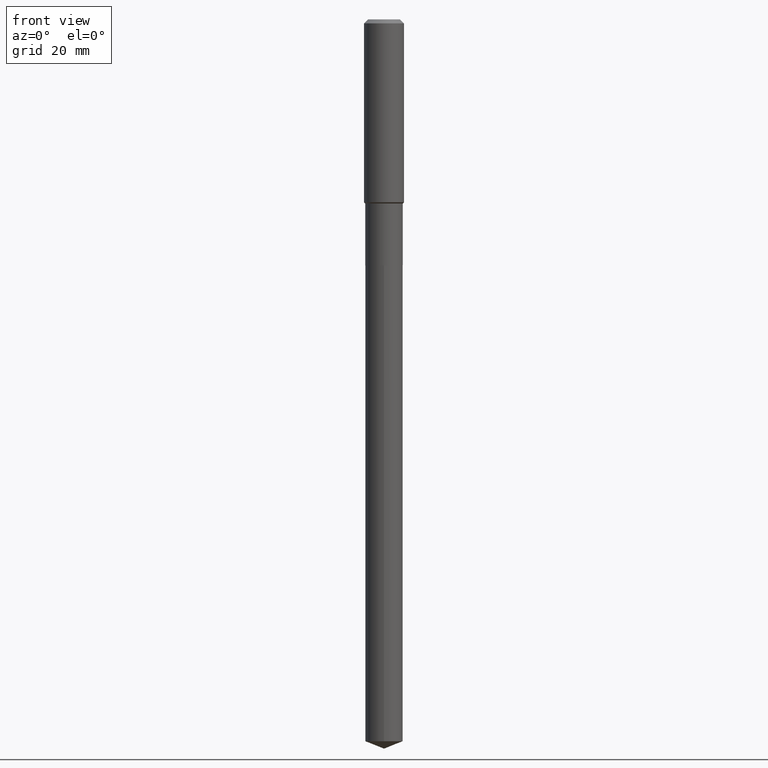
[diagram: clean part render]
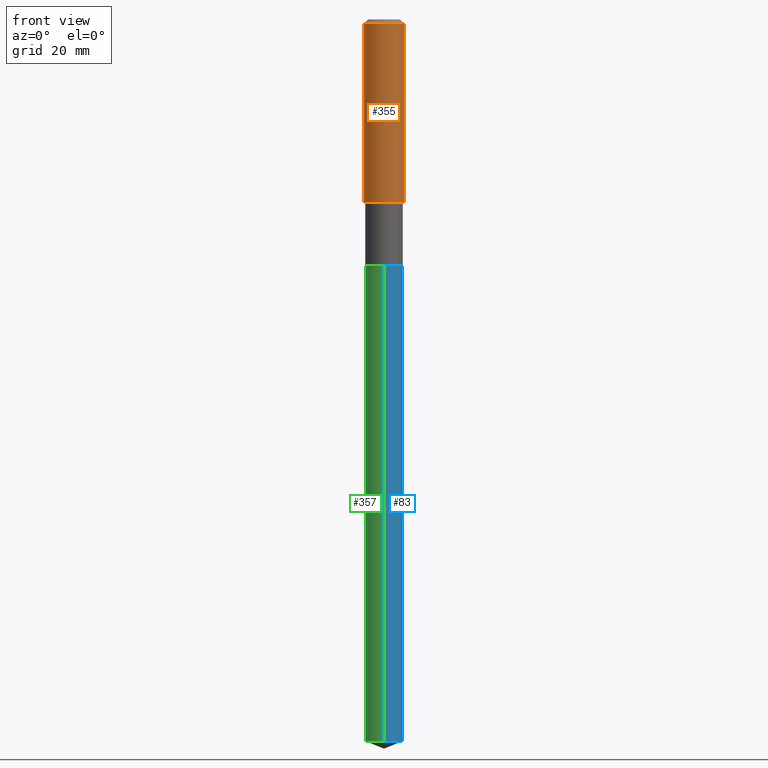
[diagram: same view with three faces highlighted in distinct colors, each labeled with its STEP entity id]
A machine part, front view with three faces highlighted in distinct colors.
Their STEP definitions:

[orange] entity #355 — the highlighted cylindrical surface (edge-blend (fillet) strip) has radius 4.0005 mm, axis along (-0, 0, 1).
#10 = DIRECTION ( 'NONE',  ( 1.000000000000000000, -6.982962677686267499E-15, 4.876176775795936353E-29 ) ) ;
#14 = ORIENTED_EDGE ( 'NONE', *, *, #477, .F. ) ;
#34 = CARTESIAN_POINT ( 'NONE',  ( 0.1575000000000000011, -1.209798283909146741E-15, -0.03150000000000019451 ) ) ;
#46 = CARTESIAN_POINT ( 'NONE',  ( -0.1575000000000001676, -3.915087559588830636E-15, -1.441850000000000076 ) ) ;
#50 = CARTESIAN_POINT ( 'NONE',  ( -0.1575000000000000011, -1.452982206470116048E-15, -0.03150000000000019451 ) ) ;
#51 = CARTESIAN_POINT ( 'NONE',  ( 7.703226739483228723E-31, -1.099816621735597661E-16, -0.03150000000000019451 ) ) ;
#61 = EDGE_CURVE ( 'NONE', #467, #257, #170, .T. ) ;
#97 = LINE ( 'NONE', #356, #432 ) ;
#108 = CARTESIAN_POINT ( 'NONE',  ( 0.1575000000000001676, -6.134008990146578875E-15, -1.441850000000000076 ) ) ;
#118 = AXIS2_PLACEMENT_3D ( 'NONE', #129, #149, #420 ) ;
#129 = CARTESIAN_POINT ( 'NONE',  ( 3.525999198198039773E-29, -5.034192368410989029E-15, -1.441850000000000076 ) ) ;
#144 = CIRCLE ( 'NONE', #118, 0.1575000000000001676 ) ;
#148 = EDGE_CURVE ( 'NONE', #153, #440, #144, .T. ) ;
#149 = DIRECTION ( 'NONE',  ( -2.445468806185136597E-29, 3.491481338843145583E-15, 1.000000000000000000 ) ) ;
#153 = VERTEX_POINT ( 'NONE', #46 ) ;
#170 = CIRCLE ( 'NONE', #209, 0.1575000000000000011 ) ;
#206 = ORIENTED_EDGE ( 'NONE', *, *, #148, .T. ) ;
#209 = AXIS2_PLACEMENT_3D ( 'NONE', #51, #309, #394 ) ;
#227 = CARTESIAN_POINT ( 'NONE',  ( 0.000000000000000000, 0.000000000000000000, 0.000000000000000000 ) ) ;
#257 = VERTEX_POINT ( 'NONE', #34 ) ;
#290 = FACE_OUTER_BOUND ( 'NONE', #430, .T. ) ;
#294 = LINE ( 'NONE', #326, #422 ) ;
#296 = ORIENTED_EDGE ( 'NONE', *, *, #413, .T. ) ;
#300 = CYLINDRICAL_SURFACE ( 'NONE', #414, 0.1575000000000000844 ) ;
#309 = DIRECTION ( 'NONE',  ( -2.445468806185136597E-29, 3.491481338843145583E-15, 1.000000000000000000 ) ) ;
#326 = CARTESIAN_POINT ( 'NONE',  ( 0.1575000000000000844, -1.099816621735587677E-15, 7.679978421878603638E-30 ) ) ;
#355 = ADVANCED_FACE ( 'NONE', ( #290 ), #300, .T. ) ;
#356 = CARTESIAN_POINT ( 'NONE',  ( -0.1575000000000000844, 1.119104808822158392E-15, -7.747322767151481189E-30 ) ) ;
#378 = DIRECTION ( 'NONE',  ( -2.445468806185136597E-29, 3.491481338843145583E-15, 1.000000000000000000 ) ) ;
#394 = DIRECTION ( 'NONE',  ( 1.000000000000000000, -6.982962677686265922E-15, 0.000000000000000000 ) ) ;
#404 = DIRECTION ( 'NONE',  ( -2.445468806185136877E-29, 3.491481338843145188E-15, 1.000000000000000000 ) ) ;
#413 = EDGE_CURVE ( 'NONE', #440, #257, #294, .T. ) ;
#414 = AXIS2_PLACEMENT_3D ( 'NONE', #227, #378, #10 ) ;
#420 = DIRECTION ( 'NONE',  ( 1.000000000000000000, -6.982962677686267499E-15, 0.000000000000000000 ) ) ;
#422 = VECTOR ( 'NONE', #404, 39.37007874015748143 ) ;
#430 = EDGE_LOOP ( 'NONE', ( #14, #206, #296, #471 ) ) ;
#432 = VECTOR ( 'NONE', #435, 39.37007874015748143 ) ;
#435 = DIRECTION ( 'NONE',  ( -2.445468806185136877E-29, 3.491481338843145188E-15, 1.000000000000000000 ) ) ;
#440 = VERTEX_POINT ( 'NONE', #108 ) ;
#467 = VERTEX_POINT ( 'NONE', #50 ) ;
#471 = ORIENTED_EDGE ( 'NONE', *, *, #61, .F. ) ;
#477 = EDGE_CURVE ( 'NONE', #153, #467, #97, .T. ) ;

[blue] entity #83 — the highlighted cylindrical surface (edge-blend (fillet) strip) has radius 3.7503 mm, axis along (-0, 0, 1).
#2 = ORIENTED_EDGE ( 'NONE', *, *, #288, .F. ) ;
#42 = CARTESIAN_POINT ( 'NONE',  ( 1.049116349349926986E-15, 0.1476499999999801305, -5.689839118275454410 ) ) ;
#62 = DIRECTION ( 'NONE',  ( -2.445505750624633031E-29, 3.491428432303039480E-15, 1.000000000000000000 ) ) ;
#83 = ADVANCED_FACE ( 'NONE', ( #484 ), #145, .T. ) ;
#84 = CARTESIAN_POINT ( 'NONE',  ( -1.031034439360329753E-15, -0.1476500000000068036, -1.938999999999999169 ) ) ;
#87 = CIRCLE ( 'NONE', #359, 0.1476500000000000035 ) ;
#89 = LINE ( 'NONE', #84, #232 ) ;
#98 = EDGE_CURVE ( 'NONE', #116, #292, #87, .T. ) ;
#109 = DIRECTION ( 'NONE',  ( -6.982962677686266711E-15, -1.000000000000000000, 3.700437512582815297E-15 ) ) ;
#114 = ORIENTED_EDGE ( 'NONE', *, *, #253, .T. ) ;
#116 = VERTEX_POINT ( 'NONE', #212 ) ;
#123 = CARTESIAN_POINT ( 'NONE',  ( 1.049116349349835281E-15, 0.1476499999999932311, -1.939000000000000279 ) ) ;
#145 = CYLINDRICAL_SURFACE ( 'NONE', #365, 0.1476500000000000035 ) ;
#161 = CARTESIAN_POINT ( 'NONE',  ( 1.391446264860343050E-28, -1.986576865855824587E-14, -5.689839118275454410 ) ) ;
#188 = ORIENTED_EDGE ( 'NONE', *, *, #98, .F. ) ;
#197 = DIRECTION ( 'NONE',  ( -2.445505750624633031E-29, 3.491428432303039480E-15, 1.000000000000000000 ) ) ;
#203 = VERTEX_POINT ( 'NONE', #263 ) ;
#212 = CARTESIAN_POINT ( 'NONE',  ( -1.031034439360329753E-15, -0.1476500000000068036, -1.938999999999999169 ) ) ;
#214 = CARTESIAN_POINT ( 'NONE',  ( 4.741764015192979440E-29, -6.769982316016858264E-15, -1.938999999999999835 ) ) ;
#232 = VECTOR ( 'NONE', #458, 39.37007874015748143 ) ;
#246 = CARTESIAN_POINT ( 'NONE',  ( 4.741764015192979440E-29, -6.769982316016858264E-15, -1.938999999999999835 ) ) ;
#253 = EDGE_CURVE ( 'NONE', #260, #292, #383, .T. ) ;
#260 = VERTEX_POINT ( 'NONE', #42 ) ;
#263 = CARTESIAN_POINT ( 'NONE',  ( -1.031034439360237850E-15, -0.1476500000000198487, -5.689839118275454410 ) ) ;
#273 = EDGE_LOOP ( 'NONE', ( #457, #114, #188, #2 ) ) ;
#288 = EDGE_CURVE ( 'NONE', #203, #116, #89, .T. ) ;
#292 = VERTEX_POINT ( 'NONE', #367 ) ;
#298 = CIRCLE ( 'NONE', #361, 0.1476500000000000035 ) ;
#304 = DIRECTION ( 'NONE',  ( -6.982962677686266711E-15, -1.000000000000000000, 0.000000000000000000 ) ) ;
#319 = EDGE_CURVE ( 'NONE', #203, #260, #298, .T. ) ;
#359 = AXIS2_PLACEMENT_3D ( 'NONE', #246, #62, #109 ) ;
#361 = AXIS2_PLACEMENT_3D ( 'NONE', #161, #423, #304 ) ;
#365 = AXIS2_PLACEMENT_3D ( 'NONE', #214, #442, #476 ) ;
#367 = CARTESIAN_POINT ( 'NONE',  ( 1.049116349349927775E-15, 0.1476499999999932311, -1.939000000000000279 ) ) ;
#383 = LINE ( 'NONE', #123, #451 ) ;
#423 = DIRECTION ( 'NONE',  ( -2.445505750624633031E-29, 3.491428432303039480E-15, 1.000000000000000000 ) ) ;
#442 = DIRECTION ( 'NONE',  ( -2.445505750624633031E-29, 3.491428432303039480E-15, 1.000000000000000000 ) ) ;
#451 = VECTOR ( 'NONE', #197, 39.37007874015748143 ) ;
#457 = ORIENTED_EDGE ( 'NONE', *, *, #319, .T. ) ;
#458 = DIRECTION ( 'NONE',  ( -2.445505750624633031E-29, 3.491428432303039480E-15, 1.000000000000000000 ) ) ;
#476 = DIRECTION ( 'NONE',  ( -6.982962677686266711E-15, -1.000000000000000000, 3.700437512582815297E-15 ) ) ;
#484 = FACE_OUTER_BOUND ( 'NONE', #273, .T. ) ;

[green] entity #357 — the highlighted cylindrical surface (edge-blend (fillet) strip) has radius 3.7503 mm, axis along (-0, 0, 1).
#3 = CARTESIAN_POINT ( 'NONE',  ( 1.391446264860343050E-28, -1.986576865855824587E-14, -5.689839118275454410 ) ) ;
#12 = ORIENTED_EDGE ( 'NONE', *, *, #407, .T. ) ;
#42 = CARTESIAN_POINT ( 'NONE',  ( 1.049116349349926986E-15, 0.1476499999999801305, -5.689839118275454410 ) ) ;
#58 = FACE_OUTER_BOUND ( 'NONE', #192, .T. ) ;
#73 = DIRECTION ( 'NONE',  ( -2.445505750624633031E-29, 3.491428432303039480E-15, 1.000000000000000000 ) ) ;
#80 = CIRCLE ( 'NONE', #156, 0.1476500000000000035 ) ;
#84 = CARTESIAN_POINT ( 'NONE',  ( -1.031034439360329753E-15, -0.1476500000000068036, -1.938999999999999169 ) ) ;
#89 = LINE ( 'NONE', #84, #232 ) ;
#116 = VERTEX_POINT ( 'NONE', #212 ) ;
#123 = CARTESIAN_POINT ( 'NONE',  ( 1.049116349349835281E-15, 0.1476499999999932311, -1.939000000000000279 ) ) ;
#156 = AXIS2_PLACEMENT_3D ( 'NONE', #3, #73, #369 ) ;
#191 = ORIENTED_EDGE ( 'NONE', *, *, #288, .T. ) ;
#192 = EDGE_LOOP ( 'NONE', ( #221, #12, #191, #380 ) ) ;
#197 = DIRECTION ( 'NONE',  ( -2.445505750624633031E-29, 3.491428432303039480E-15, 1.000000000000000000 ) ) ;
#201 = CARTESIAN_POINT ( 'NONE',  ( 4.741764015192979440E-29, -6.769982316016858264E-15, -1.938999999999999835 ) ) ;
#203 = VERTEX_POINT ( 'NONE', #263 ) ;
#212 = CARTESIAN_POINT ( 'NONE',  ( -1.031034439360329753E-15, -0.1476500000000068036, -1.938999999999999169 ) ) ;
#218 = AXIS2_PLACEMENT_3D ( 'NONE', #201, #395, #469 ) ;
#221 = ORIENTED_EDGE ( 'NONE', *, *, #253, .F. ) ;
#232 = VECTOR ( 'NONE', #458, 39.37007874015748143 ) ;
#244 = CARTESIAN_POINT ( 'NONE',  ( 4.741764015192979440E-29, -6.769982316016858264E-15, -1.938999999999999835 ) ) ;
#249 = AXIS2_PLACEMENT_3D ( 'NONE', #244, #315, #281 ) ;
#253 = EDGE_CURVE ( 'NONE', #260, #292, #383, .T. ) ;
#260 = VERTEX_POINT ( 'NONE', #42 ) ;
#263 = CARTESIAN_POINT ( 'NONE',  ( -1.031034439360237850E-15, -0.1476500000000198487, -5.689839118275454410 ) ) ;
#268 = CIRCLE ( 'NONE', #249, 0.1476500000000000035 ) ;
#281 = DIRECTION ( 'NONE',  ( -6.982962677686266711E-15, -1.000000000000000000, 3.700437512582815297E-15 ) ) ;
#288 = EDGE_CURVE ( 'NONE', #203, #116, #89, .T. ) ;
#292 = VERTEX_POINT ( 'NONE', #367 ) ;
#315 = DIRECTION ( 'NONE',  ( -2.445505750624633031E-29, 3.491428432303039480E-15, 1.000000000000000000 ) ) ;
#357 = ADVANCED_FACE ( 'NONE', ( #58 ), #437, .T. ) ;
#367 = CARTESIAN_POINT ( 'NONE',  ( 1.049116349349927775E-15, 0.1476499999999932311, -1.939000000000000279 ) ) ;
#369 = DIRECTION ( 'NONE',  ( -6.982962677686266711E-15, -1.000000000000000000, 0.000000000000000000 ) ) ;
#380 = ORIENTED_EDGE ( 'NONE', *, *, #470, .F. ) ;
#383 = LINE ( 'NONE', #123, #451 ) ;
#395 = DIRECTION ( 'NONE',  ( -2.445505750624633031E-29, 3.491428432303039480E-15, 1.000000000000000000 ) ) ;
#407 = EDGE_CURVE ( 'NONE', #260, #203, #80, .T. ) ;
#437 = CYLINDRICAL_SURFACE ( 'NONE', #218, 0.1476500000000000035 ) ;
#451 = VECTOR ( 'NONE', #197, 39.37007874015748143 ) ;
#458 = DIRECTION ( 'NONE',  ( -2.445505750624633031E-29, 3.491428432303039480E-15, 1.000000000000000000 ) ) ;
#469 = DIRECTION ( 'NONE',  ( -6.982962677686266711E-15, -1.000000000000000000, 3.700437512582815297E-15 ) ) ;
#470 = EDGE_CURVE ( 'NONE', #292, #116, #268, .T. ) ;